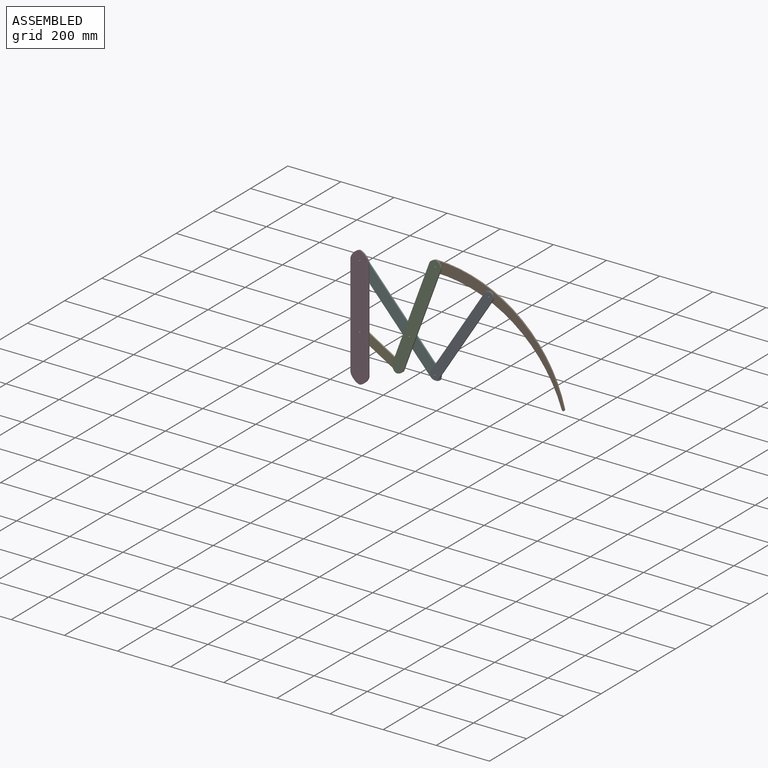
[diagram: assembled view]
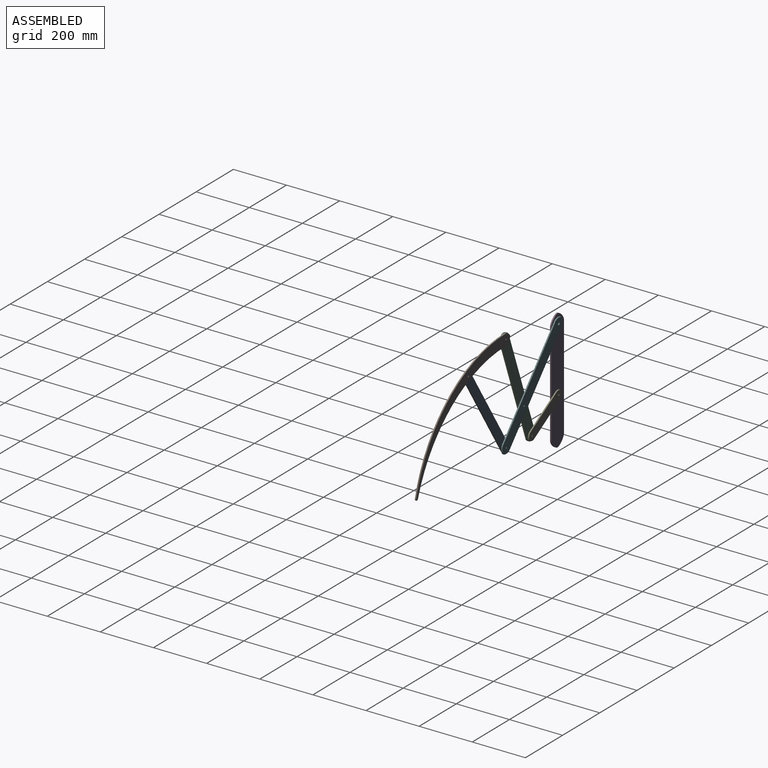
[diagram: assembled view, second angle]
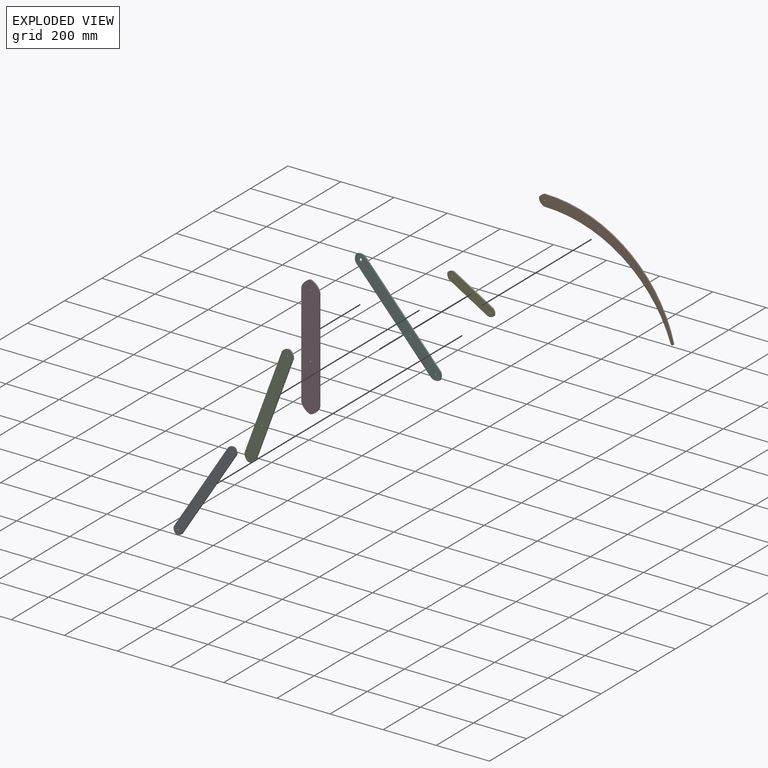
[diagram: exploded view]
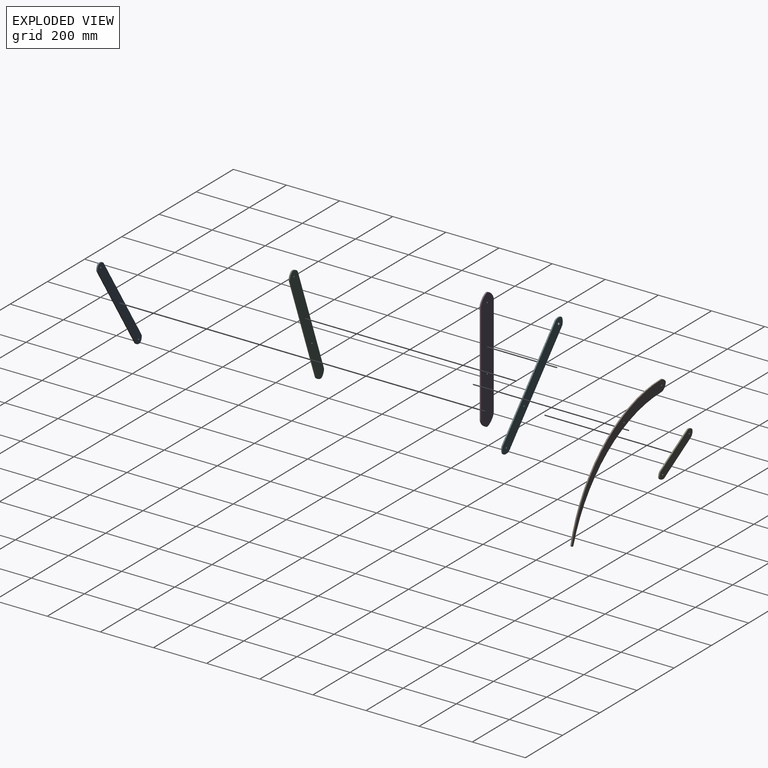
[diagram: exploded view, second angle]
ASSEMBLY  parts=6 mates=7
PART A: 10 faces, bbox 418.8x8.1x38.8 mm
  f0: plane 380x4.76mm, normal (0,0,-1), area 1809.8mm2, adj f4,f5,f7,f9
  f1: cylinder r=2.5mm len=5mm, axis (0,1,0), area 74.8mm2, adj f4,f5
  f2: cylinder r=2.5mm len=5mm, axis (0,1,0), area 74.8mm2, adj f4,f5
  f3: plane 380x4.76mm, normal (0,0,1), area 1809.8mm2, adj f4,f5,f6,f8
  f4: plane 418.84x38.84mm, normal (0,-1,0), area 14548.9mm2, adj f0,f1,f2,f3,f6,f7,f8,f9
  f5: plane 418.84x38.84mm, normal (0,1,0), area 14548.9mm2, adj f0,f1,f2,f3,f6,f7,f8,f9
  f6: bspline ~18x18mm, area 129.4mm2, adj f3,f4,f5,f7
  f7: bspline ~18x18mm, area 129.4mm2, adj f0,f4,f5,f6
  f8: bspline ~18x18mm, area 129.4mm2, adj f3,f4,f5,f9
  f9: bspline ~18x18mm, area 129.4mm2, adj f0,f4,f5,f8
PART B: 9 faces, bbox 629.2x9.1x166.4 mm
  f0: cylinder r=500mm len=580.34mm, axis (0,1,0), area 2966mm2, adj f4,f5,f6,f8
  f1: cylinder r=500mm len=609.06mm, axis (0,1,0), area 3157.1mm2, adj f4,f5,f7,f8
  f2: cylinder r=2.5mm len=5mm, axis (0,1,0), area 74.8mm2, adj f4,f5
  f3: cylinder r=2.5mm len=5mm, axis (0,1,0), area 74.8mm2, adj f4,f5
  f4: plane 625.29x166.4mm, normal (0,-1,0), area 20406mm2, adj f0,f1,f2,f3,f6,f7,f8
  f5: plane 625.24x166.34mm, normal (0,1,0), area 20406.6mm2, adj f0,f1,f2,f3,f6,f7,f8
  f6: bspline ~33.01x28.67mm, area 183.1mm2, adj f0,f4,f5,f7
  f7: bspline ~25.13x14.9mm, area 130.1mm2, adj f1,f4,f5,f6
  f8: cylinder r=5mm len=8.46mm, axis (0,-1,0), area 72.8mm2, adj f0,f1,f4,f5
PART C: 11 faces, bbox 45x5.2x450 mm
  f0: plane 405x4.76mm, normal (-1,0,0), area 1928.8mm2, adj f5,f6,f8,f10
  f1: cylinder r=2.5mm len=5mm, axis (0,-1,0), area 74.8mm2, adj f5,f6
  f2: cylinder r=2.5mm len=5mm, axis (0,-1,0), area 74.8mm2, adj f5,f6
  f3: cylinder r=0.06mm len=4.76mm, axis (0,-1,0), area 1.9mm2, adj f5,f6
  f4: plane 405x4.76mm, normal (1,0,0), area 1928.8mm2, adj f5,f6,f7,f9
  f5: plane 450x45mm, normal (0,1,0), area 19649.1mm2, adj f0,f1,f2,f3,f4,f7,f8,f9
  f6: plane 450x45mm, normal (0,-1,0), area 19649.1mm2, adj f0,f1,f2,f3,f4,f7,f8,f9
  f7: bspline ~22.5x22.5mm, area 161.7mm2, adj f4,f5,f6,f8
  f8: bspline ~22.5x22.5mm, area 161.7mm2, adj f0,f5,f6,f7
  f9: bspline ~22.5x22.5mm, area 161.7mm2, adj f4,f5,f6,f10
  f10: bspline ~22.5x22.5mm, area 161.7mm2, adj f0,f5,f6,f9
PART D: 10 faces, bbox 68.6x5.2x457.2 mm
  f0: plane 385.2x4.76mm, normal (-1,0,0), area 1834.5mm2, adj f4,f5,f7,f9
  f1: cylinder r=2.5mm len=5mm, axis (0,1,0), area 74.8mm2, adj f4,f5
  f2: cylinder r=2.5mm len=5mm, axis (0,1,0), area 74.8mm2, adj f4,f5
  f3: plane 385.2x4.76mm, normal (1,0,0), area 1834.5mm2, adj f4,f5,f6,f8
  f4: plane 457.2x68.58mm, normal (0,-1,0), area 29833.8mm2, adj f0,f1,f2,f3,f6,f7,f8,f9
  f5: plane 457.2x68.58mm, normal (0,1,0), area 29833.8mm2, adj f0,f1,f2,f3,f6,f7,f8,f9
  f6: bspline ~36x36mm, area 250.5mm2, adj f3,f4,f5,f7
  f7: bspline ~36x36mm, area 250.5mm2, adj f0,f4,f5,f6
  f8: bspline ~36x36mm, area 250.5mm2, adj f3,f4,f5,f9
  f9: bspline ~36x36mm, area 250.5mm2, adj f0,f4,f5,f8
PART E: 10 faces, bbox 205.3x8.1x38.8 mm
  f0: plane 166.5x4.76mm, normal (0,0,-1), area 793mm2, adj f4,f5,f7,f9
  f1: cylinder r=2.5mm len=5mm, axis (0,1,0), area 74.8mm2, adj f4,f5
  f2: cylinder r=2.5mm len=5mm, axis (0,1,0), area 74.8mm2, adj f4,f5
  f3: plane 166.5x4.76mm, normal (0,0,1), area 793mm2, adj f4,f5,f6,f8
  f4: plane 205.34x38.84mm, normal (0,-1,0), area 6872.8mm2, adj f0,f1,f2,f3,f6,f7,f8,f9
  f5: plane 205.34x38.84mm, normal (0,1,0), area 6872.8mm2, adj f0,f1,f2,f3,f6,f7,f8,f9
  f6: bspline ~18x18mm, area 129.4mm2, adj f3,f4,f5,f7
  f7: bspline ~18x18mm, area 129.4mm2, adj f0,f4,f5,f6
  f8: bspline ~18x18mm, area 129.4mm2, adj f3,f4,f5,f9
  f9: bspline ~18x18mm, area 129.4mm2, adj f0,f4,f5,f8
PART F: 11 faces, bbox 45x5.2x468 mm
  f0: plane 423x4.76mm, normal (-1,0,0), area 2014.5mm2, adj f5,f6,f8,f10
  f1: cylinder r=2.5mm len=5mm, axis (0,1,0), area 74.8mm2, adj f5,f6
  f2: cylinder r=2.5mm len=5mm, axis (0,1,0), area 74.8mm2, adj f5,f6
  f3: cylinder r=5mm len=10mm, axis (0,1,0), area 149.6mm2, adj f5,f6
  f4: plane 423x4.76mm, normal (1,0,0), area 2014.5mm2, adj f5,f6,f7,f9
  f5: plane 468x45mm, normal (0,-1,0), area 20381.2mm2, adj f0,f1,f2,f3,f4,f7,f8,f9
  f6: plane 468x45mm, normal (0,1,0), area 20381.2mm2, adj f0,f1,f2,f3,f4,f7,f8,f9
  f7: bspline ~22.5x22.5mm, area 161.7mm2, adj f4,f5,f6,f8
  f8: bspline ~22.5x22.5mm, area 161.7mm2, adj f0,f5,f6,f7
  f9: bspline ~22.5x22.5mm, area 161.7mm2, adj f4,f5,f6,f10
  f10: bspline ~22.5x22.5mm, area 161.7mm2, adj f0,f5,f6,f9
PLACE A rot(axis=(-0.88,0,-0.48),180deg) t=(-48.39,-4.25,-108.67)mm
PLACE B rot(axis=(0,1,0),29.9deg) t=(-448.89,5.27,368.5)mm
PLACE C rot(axis=(0,-1,0),159.8deg) t=(330.47,-4.25,492.91)mm
PLACE D t=(-120.74,0.51,23.95)mm fixed
PLACE E rot(axis=(0.96,0,-0.26),180deg) t=(-307.22,0.51,537.02)mm
PLACE F rot(axis=(0,-1,0),41.9deg) t=(-1.81,5.27,-60.28)mm
MATE revolute B.f2 <-> C.f1  axis (0,-1,0) through (197.63,0.51,501.79)mm
MATE revolute B.f3 <-> A.f1  axis (0,-1,0) through (399.7,0.51,452.99)mm
MATE cylindrical F.f2 <-> C.f2  axis (0,-1,0) through (100.76,0.51,238.35)mm
MATE revolute D.f1 <-> F.f3  axis (0,1,0) through (-86.45,0.51,446.86)mm
MATE revolute A.f2 <-> F.f1  axis (0,1,0) through (196.15,0.51,132.11)mm
MATE revolute D.f2 <-> E.f1  axis (0,1,0) through (-86.45,0.51,203.95)mm
MATE revolute E.f2 <-> C.f3  axis (0,-1,0) through (57.08,0.51,119.56)mm
